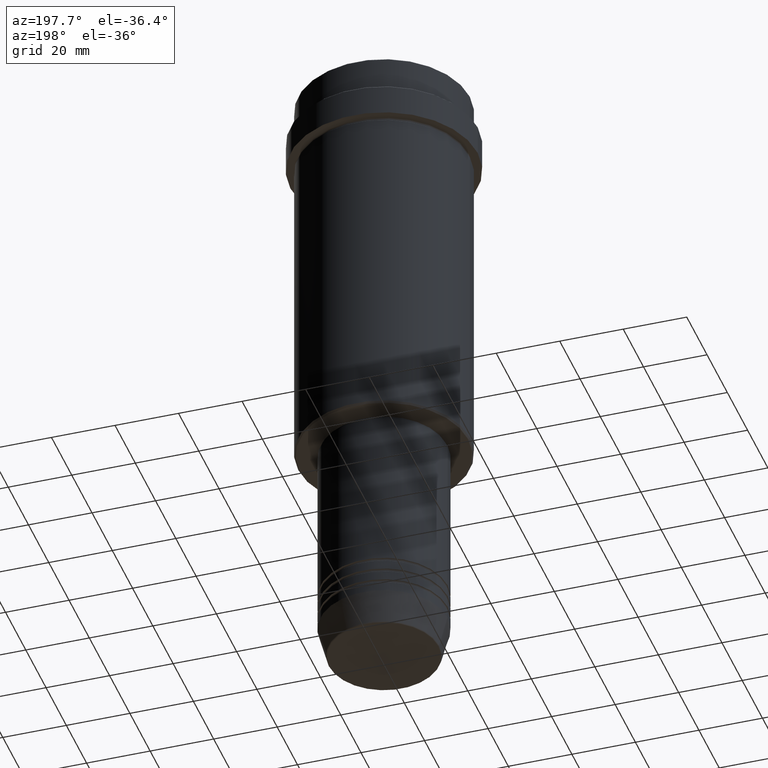
[diagram: clean part render]
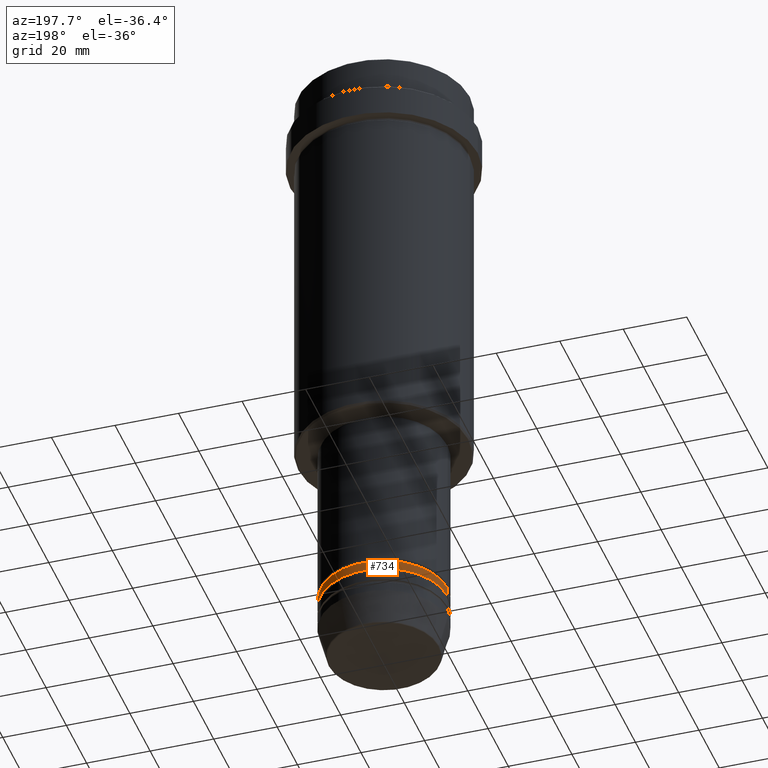
[diagram: same view with one face highlighted and labeled with its STEP entity id]
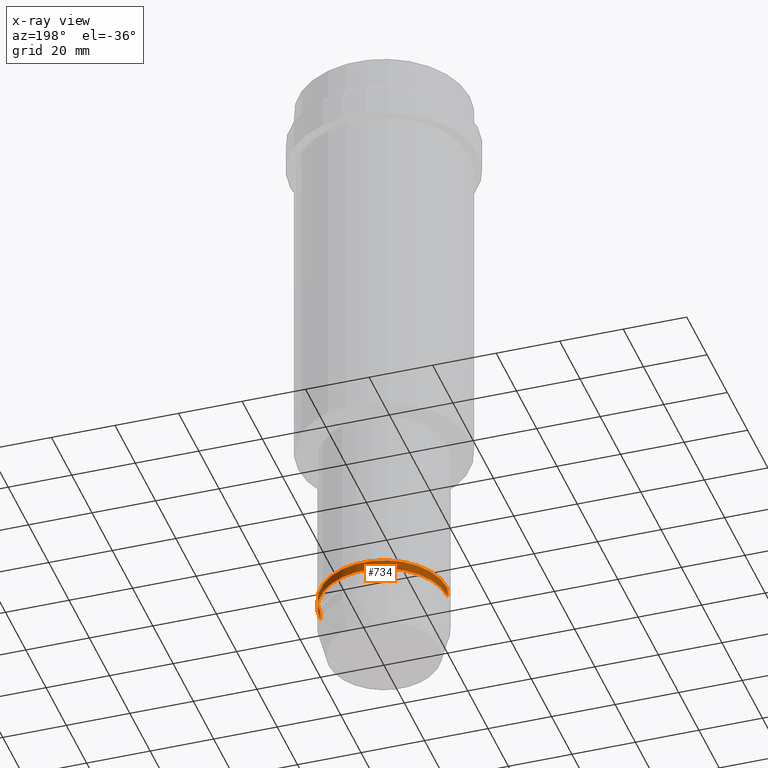
[diagram: x-ray of the same camera — body ghosted, the highlighted face saturated]
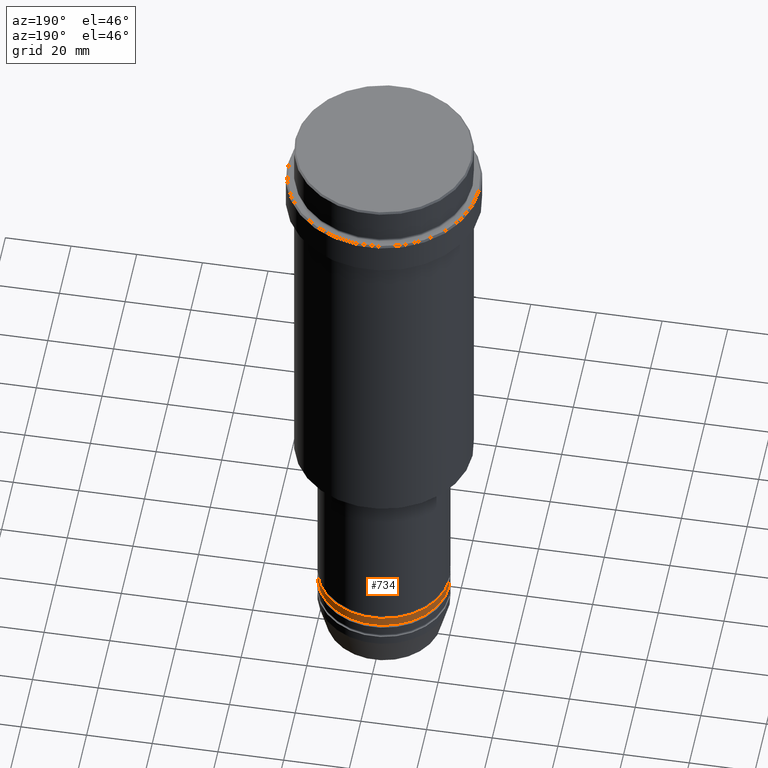
[diagram: same view with one face highlighted and labeled with its STEP entity id]
A machine part, auxiliary view. The second image highlights one B-rep face of the part: STEP entity #734.
The next image is the same camera in x-ray: the body ghosted, the highlighted face saturated — about 0% of this face is hidden behind the body in this view.
A second angle (auxiliary view) of the same face is appended — the face is thin or edge-on in the first view.
In plain terms, the highlighted cylindrical surface (partial cylindrical patch) has radius 20 mm, axis along (-0, -0, 1).
Its self-contained STEP definition (entity closure, byte-faithful):
#17 = DIRECTION ( 'NONE',  ( -0.000000000000000000, -0.000000000000000000, 1.000000000000000000 ) ) ;
#20 = EDGE_LOOP ( 'NONE', ( #999, #756, #182, #1194 ) ) ;
#98 = EDGE_CURVE ( 'NONE', #749, #373, #953, .T. ) ;
#182 = ORIENTED_EDGE ( 'NONE', *, *, #192, .F. ) ;
#192 = EDGE_CURVE ( 'NONE', #962, #1315, #203, .T. ) ;
#200 = DIRECTION ( 'NONE',  ( -0.000000000000000000, -0.000000000000000000, 1.000000000000000000 ) ) ;
#203 = CIRCLE ( 'NONE', #883, 20.00000000000000000 ) ;
#206 = VECTOR ( 'NONE', #869, 1000.000000000000000 ) ;
#310 = CARTESIAN_POINT ( 'NONE',  ( -20.00000000000000000, 2.449293598294706513E-15, -184.9999999999999147 ) ) ;
#353 = DIRECTION ( 'NONE',  ( -0.000000000000000000, -0.000000000000000000, 1.000000000000000000 ) ) ;
#367 = LINE ( 'NONE', #813, #650 ) ;
#373 = VERTEX_POINT ( 'NONE', #310 ) ;
#454 = DIRECTION ( 'NONE',  ( 1.000000000000000000, 0.000000000000000000, 0.000000000000000000 ) ) ;
#495 = DIRECTION ( 'NONE',  ( 1.000000000000000000, 0.000000000000000000, 0.000000000000000000 ) ) ;
#542 = CARTESIAN_POINT ( 'NONE',  ( 20.00000000000000000, 0.000000000000000000, 0.000000000000000000 ) ) ;
#650 = VECTOR ( 'NONE', #353, 1000.000000000000000 ) ;
#734 = ADVANCED_FACE ( 'NONE', ( #1280 ), #750, .T. ) ;
#749 = VERTEX_POINT ( 'NONE', #1266 ) ;
#750 = CYLINDRICAL_SURFACE ( 'NONE', #1359, 20.00000000000000000 ) ;
#756 = ORIENTED_EDGE ( 'NONE', *, *, #1033, .T. ) ;
#813 = CARTESIAN_POINT ( 'NONE',  ( -20.00000000000000000, 2.449293598294706513E-15, 0.000000000000000000 ) ) ;
#868 = DIRECTION ( 'NONE',  ( 1.000000000000000000, 0.000000000000000000, 0.000000000000000000 ) ) ;
#869 = DIRECTION ( 'NONE',  ( -0.000000000000000000, -0.000000000000000000, 1.000000000000000000 ) ) ;
#883 = AXIS2_PLACEMENT_3D ( 'NONE', #1219, #17, #454 ) ;
#953 = CIRCLE ( 'NONE', #1314, 20.00000000000000000 ) ;
#962 = VERTEX_POINT ( 'NONE', #1400 ) ;
#999 = ORIENTED_EDGE ( 'NONE', *, *, #98, .T. ) ;
#1033 = EDGE_CURVE ( 'NONE', #373, #1315, #367, .T. ) ;
#1090 = CARTESIAN_POINT ( 'NONE',  ( -20.00000000000000000, 2.449293598294706513E-15, -181.9999999999999147 ) ) ;
#1172 = DIRECTION ( 'NONE',  ( -0.000000000000000000, -0.000000000000000000, 1.000000000000000000 ) ) ;
#1194 = ORIENTED_EDGE ( 'NONE', *, *, #1370, .F. ) ;
#1214 = LINE ( 'NONE', #542, #206 ) ;
#1219 = CARTESIAN_POINT ( 'NONE',  ( 0.000000000000000000, 0.000000000000000000, -181.9999999999999147 ) ) ;
#1263 = CARTESIAN_POINT ( 'NONE',  ( 0.000000000000000000, 0.000000000000000000, -184.9999999999999147 ) ) ;
#1266 = CARTESIAN_POINT ( 'NONE',  ( 20.00000000000000000, 0.000000000000000000, -184.9999999999999147 ) ) ;
#1280 = FACE_OUTER_BOUND ( 'NONE', #20, .T. ) ;
#1295 = CARTESIAN_POINT ( 'NONE',  ( 0.000000000000000000, 0.000000000000000000, 0.000000000000000000 ) ) ;
#1314 = AXIS2_PLACEMENT_3D ( 'NONE', #1263, #200, #868 ) ;
#1315 = VERTEX_POINT ( 'NONE', #1090 ) ;
#1359 = AXIS2_PLACEMENT_3D ( 'NONE', #1295, #1172, #495 ) ;
#1370 = EDGE_CURVE ( 'NONE', #749, #962, #1214, .T. ) ;
#1400 = CARTESIAN_POINT ( 'NONE',  ( 20.00000000000000000, 0.000000000000000000, -181.9999999999999147 ) ) ;